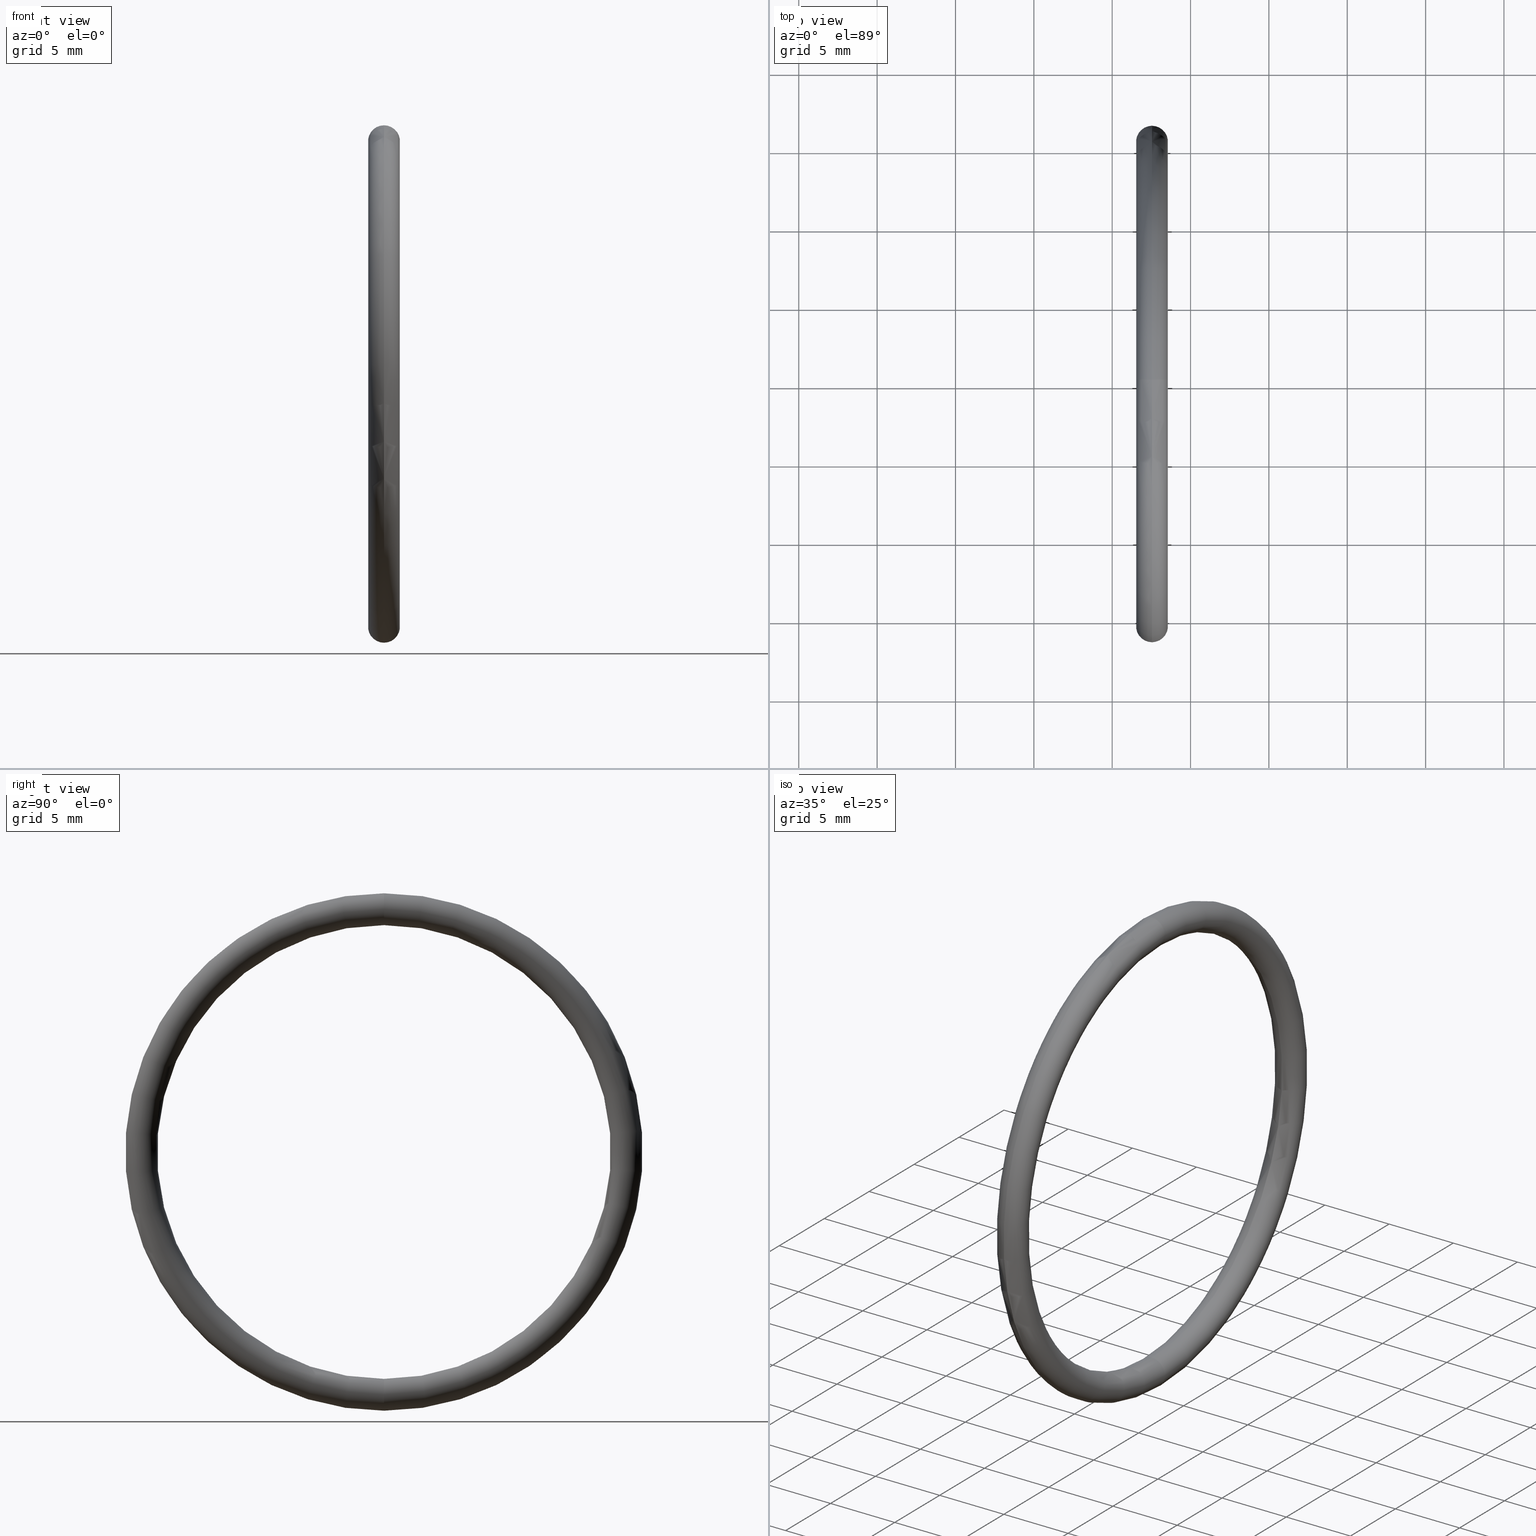
[diagram: canonical four-view strip — front | top / right | iso, engineering-drawing reading convention]
A machine part, canonical four-view strip (front | top / right | iso — engineering-drawing reading convention). The complete STEP part file that produces these views, byte-faithful:
ISO-10303-21;
HEADER;
FILE_DESCRIPTION (( 'STEP AP203' ),
    '1' );
FILE_NAME ('OR-10-SI.STEP',
    '2006-03-03T07:47:43',
    ( 'bay06' ),
    ( '' ),
    'SwSTEP 2.0',
    'SolidWorks 2008',
    '' );
FILE_SCHEMA (( 'CONFIG_CONTROL_DESIGN' ));
ENDSEC;

DATA;
#1 = ADVANCED_FACE ( 'NONE', ( #78 ), #83, .T. ) ;
#2 = ORIENTED_EDGE ( 'NONE', *, *, #59, .T. ) ;
#3 = EDGE_CURVE ( 'NONE', #14, #8, #20, .T. ) ;
#4 = ORIENTED_EDGE ( 'NONE', *, *, #65, .T. ) ;
#5 = ORIENTED_EDGE ( 'NONE', *, *, #9, .F. ) ;
#6 = CLOSED_SHELL ( 'NONE', ( #15, #68, #67, #1 ) ) ;
#7 = ORIENTED_EDGE ( 'NONE', *, *, #9, .T. ) ;
#8 = VERTEX_POINT ( 'NONE', #84 ) ;
#9 = EDGE_CURVE ( 'NONE', #8, #10, #28, .T. ) ;
#10 = VERTEX_POINT ( 'NONE', #96 ) ;
#11 = EDGE_LOOP ( 'NONE', ( #13, #7, #51, #71 ) ) ;
#12 = EDGE_CURVE ( 'NONE', #8, #14, #88, .T. ) ;
#13 = ORIENTED_EDGE ( 'NONE', *, *, #12, .F. ) ;
#14 = VERTEX_POINT ( 'NONE', #86 ) ;
#15 = ADVANCED_FACE ( 'NONE', ( #85 ), #92, .T. ) ;
#16 = AXIS2_PLACEMENT_3D ( 'NONE', #21, #22, #19 ) ;
#17 = DIRECTION ( 'NONE',  ( -1.000000000000000000, -0.0000000000000000000, -0.0000000000000000000 ) ) ;
#18 = CIRCLE ( 'NONE', #29, 0.6499999999999999100 ) ;
#19 = DIRECTION ( 'NONE',  ( 0.0000000000000000000, -1.224646799147354900E-016, 1.000000000000000000 ) ) ;
#20 = CIRCLE ( 'NONE', #16, 0.03999999999999998000 ) ;
#21 = CARTESIAN_POINT ( 'NONE',  ( 0.1000000000000000700, 7.470345474798854000E-017, -0.6099999999999998800 ) ) ;
#22 = DIRECTION ( 'NONE',  ( -0.0000000000000000000, 1.000000000000000000, 1.224646799147353200E-016 ) ) ;
#23 = MANIFOLD_SOLID_BREP ( 'NONE', #6 ) ;
#24 = AXIS2_PLACEMENT_3D ( 'NONE', #26, #25, #30 ) ;
#25 = DIRECTION ( 'NONE',  ( -1.000000000000000000, -0.0000000000000000000, -0.0000000000000000000 ) ) ;
#26 = CARTESIAN_POINT ( 'NONE',  ( 0.1000000000000000700, 0.0000000000000000000, 0.0000000000000000000 ) ) ;
#27 = CARTESIAN_POINT ( 'NONE',  ( 0.1000000000000000700, 0.0000000000000000000, 0.0000000000000000000 ) ) ;
#28 = CIRCLE ( 'NONE', #24, 0.6499999999999999100 ) ;
#29 = AXIS2_PLACEMENT_3D ( 'NONE', #27, #17, #32 ) ;
#30 = DIRECTION ( 'NONE',  ( 0.0000000000000000000, 0.0000000000000000000, 1.000000000000000000 ) ) ;
#31 = DIRECTION ( 'NONE',  ( -1.000000000000000000, -0.0000000000000000000, -0.0000000000000000000 ) ) ;
#32 = DIRECTION ( 'NONE',  ( 0.0000000000000000000, 0.0000000000000000000, 1.000000000000000000 ) ) ;
#33 = DIRECTION ( 'NONE',  ( 0.0000000000000000000, 0.0000000000000000000, 1.000000000000000000 ) ) ;
#34 = DIRECTION ( 'NONE',  ( -1.000000000000000000, -0.0000000000000000000, -0.0000000000000000000 ) ) ;
#35 = CC_DESIGN_SECURITY_CLASSIFICATION ( #130, ( #182 ) ) ;
#36 = DATE_TIME_ROLE ( 'classification_date' ) ;
#37 = DATE_AND_TIME ( #46, #43 ) ;
#38 = APPROVAL_PERSON_ORGANIZATION ( #77, #76, #75 ) ;
#39 = COORDINATED_UNIVERSAL_TIME_OFFSET ( 5, 30, .AHEAD. ) ;
#40 = LOCAL_TIME ( 13, 17, 43.00000000000000000, #41 ) ;
#41 = COORDINATED_UNIVERSAL_TIME_OFFSET ( 5, 30, .AHEAD. ) ;
#42 = DIRECTION ( 'NONE',  ( 0.0000000000000000000, 0.0000000000000000000, 1.000000000000000000 ) ) ;
#43 = LOCAL_TIME ( 13, 17, 43.00000000000000000, #39 ) ;
#44 = CC_DESIGN_APPROVAL ( #76, ( #130 ) ) ;
#45 = CALENDAR_DATE ( 2006, 3, 3 ) ;
#46 = CALENDAR_DATE ( 2006, 3, 3 ) ;
#47 = APPROVAL_DATE_TIME ( #48, #76 ) ;
#48 = DATE_AND_TIME ( #45, #40 ) ;
#49 = DIRECTION ( 'NONE',  ( 0.0000000000000000000, 0.0000000000000000000, 1.000000000000000000 ) ) ;
#50 = CC_DESIGN_DATE_AND_TIME_ASSIGNMENT ( #37, #36, ( #130 ) ) ;
#51 = ORIENTED_EDGE ( 'NONE', *, *, #53, .T. ) ;
#52 = VERTEX_POINT ( 'NONE', #91 ) ;
#53 = EDGE_CURVE ( 'NONE', #10, #52, #103, .T. ) ;
#54 = EDGE_CURVE ( 'NONE', #10, #8, #18, .T. ) ;
#55 = ORIENTED_EDGE ( 'NONE', *, *, #54, .T. ) ;
#56 = EDGE_LOOP ( 'NONE', ( #64, #58, #66, #60 ) ) ;
#57 = ORIENTED_EDGE ( 'NONE', *, *, #12, .T. ) ;
#58 = ORIENTED_EDGE ( 'NONE', *, *, #59, .F. ) ;
#59 = EDGE_CURVE ( 'NONE', #52, #10, #115, .T. ) ;
#60 = ORIENTED_EDGE ( 'NONE', *, *, #3, .T. ) ;
#61 = EDGE_LOOP ( 'NONE', ( #5, #72, #4, #2 ) ) ;
#62 = ORIENTED_EDGE ( 'NONE', *, *, #63, .F. ) ;
#63 = EDGE_CURVE ( 'NONE', #52, #14, #110, .T. ) ;
#64 = ORIENTED_EDGE ( 'NONE', *, *, #54, .F. ) ;
#65 = EDGE_CURVE ( 'NONE', #14, #52, #123, .T. ) ;
#66 = ORIENTED_EDGE ( 'NONE', *, *, #63, .T. ) ;
#67 = ADVANCED_FACE ( 'NONE', ( #118 ), #117, .T. ) ;
#68 = ADVANCED_FACE ( 'NONE', ( #125 ), #107, .T. ) ;
#69 = EDGE_LOOP ( 'NONE', ( #70, #55, #57, #62 ) ) ;
#70 = ORIENTED_EDGE ( 'NONE', *, *, #53, .F. ) ;
#71 = ORIENTED_EDGE ( 'NONE', *, *, #65, .F. ) ;
#72 = ORIENTED_EDGE ( 'NONE', *, *, #3, .F. ) ;
#73 = PRODUCT_RELATED_PRODUCT_CATEGORY ( 'detail', '', ( #188 ) ) ;
#74 = APPROVAL_STATUS ( 'not_yet_approved' ) ;
#75 = APPROVAL_ROLE ( '' ) ;
#76 = APPROVAL ( #74, 'UNSPECIFIED' ) ;
#77 = PERSON_AND_ORGANIZATION ( #187, #186 ) ;
#78 = FACE_OUTER_BOUND ( 'NONE', #61, .T. ) ;
#79 = DIRECTION ( 'NONE',  ( -1.000000000000000000, -0.0000000000000000000, -0.0000000000000000000 ) ) ;
#80 = DIRECTION ( 'NONE',  ( 0.0000000000000000000, 0.0000000000000000000, 1.000000000000000000 ) ) ;
#81 = CARTESIAN_POINT ( 'NONE',  ( 0.1000000000000000700, 0.0000000000000000000, 0.0000000000000000000 ) ) ;
#82 = AXIS2_PLACEMENT_3D ( 'NONE', #81, #79, #80 ) ;
#83 = TOROIDAL_SURFACE ( 'NONE', #82, 0.6099999999999998800, 0.04000000000000000100 ) ;
#84 = CARTESIAN_POINT ( 'NONE',  ( 0.1000000000000000700, 7.960204194457794200E-017, -0.6499999999999999100 ) ) ;
#85 = FACE_OUTER_BOUND ( 'NONE', #11, .T. ) ;
#86 = CARTESIAN_POINT ( 'NONE',  ( 0.1000000000000000700, 6.980486755139912600E-017, -0.5699999999999999500 ) ) ;
#87 = AXIS2_PLACEMENT_3D ( 'NONE', #89, #94, #93 ) ;
#88 = CIRCLE ( 'NONE', #87, 0.03999999999999998000 ) ;
#89 = CARTESIAN_POINT ( 'NONE',  ( 0.1000000000000000700, 7.470345474798854000E-017, -0.6099999999999998800 ) ) ;
#90 = AXIS2_PLACEMENT_3D ( 'NONE', #95, #99, #98 ) ;
#91 = CARTESIAN_POINT ( 'NONE',  ( 0.1000000000000000700, 0.0000000000000000000, 0.5699999999999999500 ) ) ;
#92 = TOROIDAL_SURFACE ( 'NONE', #90, 0.6099999999999998800, 0.04000000000000000100 ) ;
#93 = DIRECTION ( 'NONE',  ( 0.0000000000000000000, -1.224646799147354900E-016, 1.000000000000000000 ) ) ;
#94 = DIRECTION ( 'NONE',  ( -0.0000000000000000000, 1.000000000000000000, 1.224646799147353200E-016 ) ) ;
#95 = CARTESIAN_POINT ( 'NONE',  ( 0.1000000000000000700, 0.0000000000000000000, 0.0000000000000000000 ) ) ;
#96 = CARTESIAN_POINT ( 'NONE',  ( 0.1000000000000000700, 0.0000000000000000000, 0.6499999999999999100 ) ) ;
#97 = CARTESIAN_POINT ( 'NONE',  ( 0.1000000000000000700, 0.0000000000000000000, 0.6099999999999998800 ) ) ;
#98 = DIRECTION ( 'NONE',  ( 0.0000000000000000000, 0.0000000000000000000, 1.000000000000000000 ) ) ;
#99 = DIRECTION ( 'NONE',  ( -1.000000000000000000, -0.0000000000000000000, -0.0000000000000000000 ) ) ;
#100 = DIRECTION ( 'NONE',  ( 0.0000000000000000000, 0.0000000000000000000, -1.000000000000000000 ) ) ;
#101 = DIRECTION ( 'NONE',  ( 0.0000000000000000000, -1.000000000000000000, 0.0000000000000000000 ) ) ;
#102 = AXIS2_PLACEMENT_3D ( 'NONE', #97, #101, #100 ) ;
#103 = CIRCLE ( 'NONE', #102, 0.03999999999999998000 ) ;
#104 = CARTESIAN_POINT ( 'NONE',  ( 0.1000000000000000700, 0.0000000000000000000, 0.0000000000000000000 ) ) ;
#105 = AXIS2_PLACEMENT_3D ( 'NONE', #104, #106, #42 ) ;
#106 = DIRECTION ( 'NONE',  ( -1.000000000000000000, -0.0000000000000000000, -0.0000000000000000000 ) ) ;
#107 = TOROIDAL_SURFACE ( 'NONE', #105, 0.6099999999999998800, 0.04000000000000000100 ) ;
#108 = CARTESIAN_POINT ( 'NONE',  ( 0.1000000000000000700, 0.0000000000000000000, 0.0000000000000000000 ) ) ;
#109 = AXIS2_PLACEMENT_3D ( 'NONE', #108, #31, #33 ) ;
#110 = CIRCLE ( 'NONE', #109, 0.5699999999999999500 ) ;
#111 = DIRECTION ( 'NONE',  ( 0.0000000000000000000, 0.0000000000000000000, -1.000000000000000000 ) ) ;
#112 = DIRECTION ( 'NONE',  ( 0.0000000000000000000, -1.000000000000000000, 0.0000000000000000000 ) ) ;
#113 = CARTESIAN_POINT ( 'NONE',  ( 0.1000000000000000700, 0.0000000000000000000, 0.6099999999999998800 ) ) ;
#114 = AXIS2_PLACEMENT_3D ( 'NONE', #113, #112, #111 ) ;
#115 = CIRCLE ( 'NONE', #114, 0.03999999999999998000 ) ;
#116 = AXIS2_PLACEMENT_3D ( 'NONE', #124, #34, #49 ) ;
#117 = TOROIDAL_SURFACE ( 'NONE', #116, 0.6099999999999998800, 0.04000000000000000100 ) ;
#118 = FACE_OUTER_BOUND ( 'NONE', #56, .T. ) ;
#119 = DIRECTION ( 'NONE',  ( 0.0000000000000000000, 0.0000000000000000000, 1.000000000000000000 ) ) ;
#120 = DIRECTION ( 'NONE',  ( -1.000000000000000000, -0.0000000000000000000, -0.0000000000000000000 ) ) ;
#121 = CARTESIAN_POINT ( 'NONE',  ( 0.1000000000000000700, 0.0000000000000000000, 0.0000000000000000000 ) ) ;
#122 = AXIS2_PLACEMENT_3D ( 'NONE', #121, #120, #119 ) ;
#123 = CIRCLE ( 'NONE', #122, 0.5699999999999999500 ) ;
#124 = CARTESIAN_POINT ( 'NONE',  ( 0.1000000000000000700, 0.0000000000000000000, 0.0000000000000000000 ) ) ;
#125 = FACE_OUTER_BOUND ( 'NONE', #69, .T. ) ;
#126 = APPLICATION_CONTEXT ( 'configuration controlled 3d designs of mechanical parts and assemblies' ) ;
#127 = CC_DESIGN_PERSON_AND_ORGANIZATION_ASSIGNMENT ( #129, #128, ( #130 ) ) ;
#128 = PERSON_AND_ORGANIZATION_ROLE ( 'classification_officer' ) ;
#129 = PERSON_AND_ORGANIZATION ( #187, #186 ) ;
#130 = SECURITY_CLASSIFICATION ( '', '', #131 ) ;
#131 = SECURITY_CLASSIFICATION_LEVEL ( 'unclassified' ) ;
#132 = CC_DESIGN_PERSON_AND_ORGANIZATION_ASSIGNMENT ( #134, #133, ( #182 ) ) ;
#133 = PERSON_AND_ORGANIZATION_ROLE ( 'design_supplier' ) ;
#134 = PERSON_AND_ORGANIZATION ( #187, #186 ) ;
#135 = CC_DESIGN_PERSON_AND_ORGANIZATION_ASSIGNMENT ( #171, #170, ( #182 ) ) ;
#136 =( NAMED_UNIT ( * ) PLANE_ANGLE_UNIT ( ) SI_UNIT ( $, .RADIAN. ) );
#137 =( LENGTH_UNIT ( ) NAMED_UNIT ( * ) SI_UNIT ( $, .METRE. ) );
#138 = ADVANCED_BREP_SHAPE_REPRESENTATION ( 'OR-10-SI', ( #23, #193 ), #139 ) ;
#139 =( GEOMETRIC_REPRESENTATION_CONTEXT ( 3 ) GLOBAL_UNCERTAINTY_ASSIGNED_CONTEXT ( ( #184 ) ) GLOBAL_UNIT_ASSIGNED_CONTEXT ( ( #169, #136, #185 ) ) REPRESENTATION_CONTEXT ( 'NONE', 'WORKASPACE' ) );
#140 = PERSON_AND_ORGANIZATION ( #187, #186 ) ;
#141 = CC_DESIGN_DATE_AND_TIME_ASSIGNMENT ( #143, #142, ( #161 ) ) ;
#142 = DATE_TIME_ROLE ( 'creation_date' ) ;
#143 = DATE_AND_TIME ( #144, #145 ) ;
#144 = CALENDAR_DATE ( 2006, 3, 3 ) ;
#145 = LOCAL_TIME ( 13, 17, 43.00000000000000000, #146 ) ;
#146 = COORDINATED_UNIVERSAL_TIME_OFFSET ( 5, 30, .AHEAD. ) ;
#147 = CC_DESIGN_PERSON_AND_ORGANIZATION_ASSIGNMENT ( #149, #148, ( #161 ) ) ;
#148 = PERSON_AND_ORGANIZATION_ROLE ( 'creator' ) ;
#149 = PERSON_AND_ORGANIZATION ( #187, #186 ) ;
#150 = CC_DESIGN_APPROVAL ( #158, ( #161 ) ) ;
#151 = APPROVAL_DATE_TIME ( #152, #158 ) ;
#152 = DATE_AND_TIME ( #153, #154 ) ;
#153 = CALENDAR_DATE ( 2006, 3, 3 ) ;
#154 = LOCAL_TIME ( 13, 17, 43.00000000000000000, #155 ) ;
#155 = COORDINATED_UNIVERSAL_TIME_OFFSET ( 5, 30, .AHEAD. ) ;
#156 = APPROVAL_PERSON_ORGANIZATION ( #160, #158, #157 ) ;
#157 = APPROVAL_ROLE ( '' ) ;
#158 = APPROVAL ( #159, 'UNSPECIFIED' ) ;
#159 = APPROVAL_STATUS ( 'not_yet_approved' ) ;
#160 = PERSON_AND_ORGANIZATION ( #187, #186 ) ;
#161 = PRODUCT_DEFINITION ( 'UNKNOWN', '', #182, #162 ) ;
#162 = DESIGN_CONTEXT ( 'detailed design', #164, 'design' ) ;
#163 = APPLICATION_PROTOCOL_DEFINITION ( 'international standard', 'config_control_design', 1994, #164 ) ;
#164 = APPLICATION_CONTEXT ( 'configuration controlled 3d designs of mechanical parts and assemblies' ) ;
#165 = CC_DESIGN_PERSON_AND_ORGANIZATION_ASSIGNMENT ( #167, #166, ( #188 ) ) ;
#166 = PERSON_AND_ORGANIZATION_ROLE ( 'design_owner' ) ;
#167 = PERSON_AND_ORGANIZATION ( #187, #186 ) ;
#168 = CARTESIAN_POINT ( 'NONE',  ( 0.0000000000000000000, 0.0000000000000000000, 0.0000000000000000000 ) ) ;
#169 =( CONVERSION_BASED_UNIT ( 'INCH', #183 ) LENGTH_UNIT ( ) NAMED_UNIT ( #194 ) );
#170 = PERSON_AND_ORGANIZATION_ROLE ( 'creator' ) ;
#171 = PERSON_AND_ORGANIZATION ( #187, #186 ) ;
#172 = CC_DESIGN_APPROVAL ( #180, ( #182 ) ) ;
#173 = APPROVAL_DATE_TIME ( #174, #180 ) ;
#174 = DATE_AND_TIME ( #175, #176 ) ;
#175 = CALENDAR_DATE ( 2006, 3, 3 ) ;
#176 = LOCAL_TIME ( 13, 17, 43.00000000000000000, #177 ) ;
#177 = COORDINATED_UNIVERSAL_TIME_OFFSET ( 5, 30, .AHEAD. ) ;
#178 = APPROVAL_PERSON_ORGANIZATION ( #140, #180, #179 ) ;
#179 = APPROVAL_ROLE ( '' ) ;
#180 = APPROVAL ( #181, 'UNSPECIFIED' ) ;
#181 = APPROVAL_STATUS ( 'not_yet_approved' ) ;
#182 = PRODUCT_DEFINITION_FORMATION_WITH_SPECIFIED_SOURCE ( 'ANY', '', #188, .NOT_KNOWN. ) ;
#183 = LENGTH_MEASURE_WITH_UNIT ( LENGTH_MEASURE( 0.02539999999999999900 ), #137 );
#184 = UNCERTAINTY_MEASURE_WITH_UNIT (LENGTH_MEASURE( 1.000000000000000100E-005 ), #169, 'distance_accuracy_value', 'NONE');
#185 =( NAMED_UNIT ( * ) SI_UNIT ( $, .STERADIAN. ) SOLID_ANGLE_UNIT ( ) );
#186 = ORGANIZATION ( 'UNSPECIFIED', 'UNSPECIFIED', '' ) ;
#187 = PERSON ( 'UNSPECIFIED', 'UNSPECIFIED', 'UNSPECIFIED', ('UNSPECIFIED'), ('UNSPECIFIED'), ('UNSPECIFIED') ) ;
#188 = PRODUCT ( 'OR-10-SI', 'OR-10-SI', '', ( #189 ) ) ;
#189 = MECHANICAL_CONTEXT ( 'NONE', #126, 'mechanical' ) ;
#190 = APPLICATION_PROTOCOL_DEFINITION ( 'international standard', 'config_control_design', 1994, #126 ) ;
#191 = DIRECTION ( 'NONE',  ( 1.000000000000000000, 0.0000000000000000000, 0.0000000000000000000 ) ) ;
#192 = DIRECTION ( 'NONE',  ( 0.0000000000000000000, 0.0000000000000000000, 1.000000000000000000 ) ) ;
#193 = AXIS2_PLACEMENT_3D ( 'NONE', #168, #192, #191 ) ;
#194 = DIMENSIONAL_EXPONENTS ( 1.000000000000000000, 0.0000000000000000000, 0.0000000000000000000, 0.0000000000000000000, 0.0000000000000000000, 0.0000000000000000000, 0.0000000000000000000 ) ;
#195 = PRODUCT_DEFINITION_SHAPE ( 'NONE', 'NONE',  #161 ) ;
#196 = SHAPE_DEFINITION_REPRESENTATION ( #195, #138 ) ;
ENDSEC;
END-ISO-10303-21;
